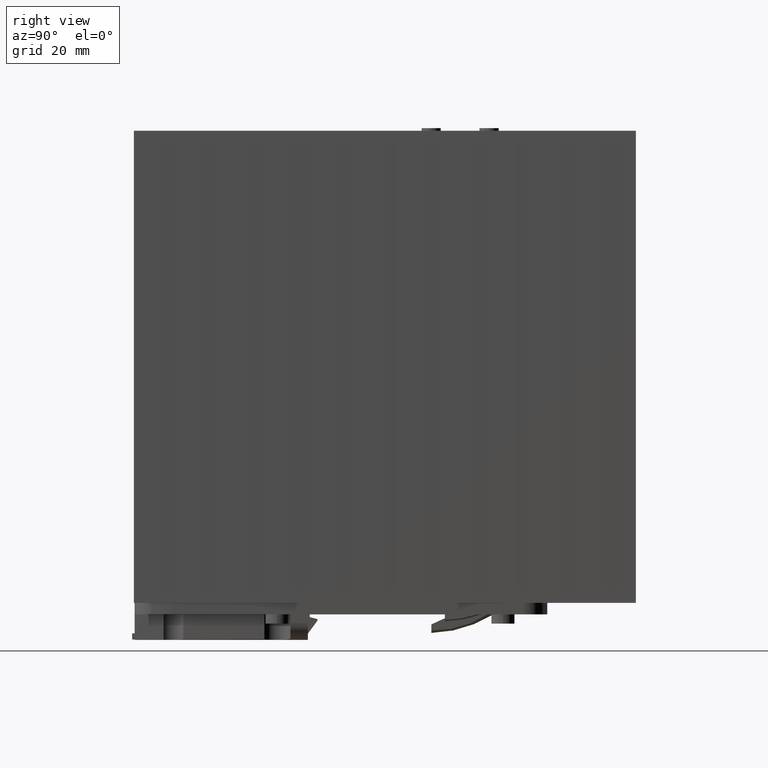
[diagram: clean part render]
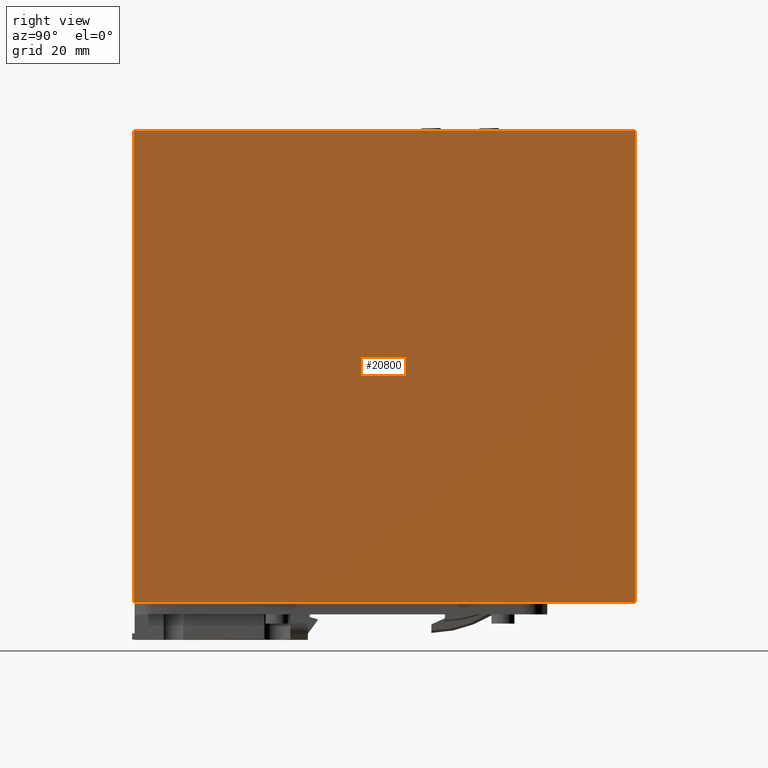
[diagram: same view with one face highlighted and labeled with its STEP entity id]
A machine part, right view. The second image highlights one B-rep face of the part: STEP entity #20800.
In plain terms, the highlighted planar face has unit normal (1, -0, -0).
Its self-contained STEP definition (entity closure, byte-faithful):
#20410=CARTESIAN_POINT('',(36.,129.2,12.0999999999997));
#20420=DIRECTION('',(1.,0.,-0.));
#20430=DIRECTION('',(0.,0.,1.));
#20440=AXIS2_PLACEMENT_3D('',#20410,#20420,#20430);
#20450=PLANE('',#20440);
#20460=CARTESIAN_POINT('',(36.,130.,131.2));
#20470=DIRECTION('',(0.,0.,-1.));
#20480=VECTOR('',#20470,1.);
#20490=LINE('',#20460,#20480);
#20500=CARTESIAN_POINT('',(36.,130.,131.85));
#20510=VERTEX_POINT('',#20500);
#20520=CARTESIAN_POINT('',(36.,130.,9.59999999999972));
#20530=VERTEX_POINT('',#20520);
#20540=EDGE_CURVE('',#20510,#20530,#20490,.T.);
#20550=ORIENTED_EDGE('',*,*,#20540,.F.);
#20560=CARTESIAN_POINT('',(36.,65.,9.59999999999972));
#20570=DIRECTION('',(0.,1.,0.));
#20580=VECTOR('',#20570,1.);
#20590=LINE('',#20560,#20580);
#20600=CARTESIAN_POINT('',(36.,0.,9.59999999999972));
#20610=VERTEX_POINT('',#20600);
#20620=EDGE_CURVE('',#20610,#20530,#20590,.T.);
#20630=ORIENTED_EDGE('',*,*,#20620,.T.);
#20640=CARTESIAN_POINT('',(36.,0.,131.2));
#20650=DIRECTION('',(0.,0.,1.));
#20660=VECTOR('',#20650,1.);
#20670=LINE('',#20640,#20660);
#20680=CARTESIAN_POINT('',(36.,0.,131.85));
#20690=VERTEX_POINT('',#20680);
#20700=EDGE_CURVE('',#20610,#20690,#20670,.T.);
#20710=ORIENTED_EDGE('',*,*,#20700,.F.);
#20720=CARTESIAN_POINT('',(36.,65.,131.85));
#20730=DIRECTION('',(0.,-1.,0.));
#20740=VECTOR('',#20730,1.);
#20750=LINE('',#20720,#20740);
#20760=EDGE_CURVE('',#20510,#20690,#20750,.T.);
#20770=ORIENTED_EDGE('',*,*,#20760,.T.);
#20780=EDGE_LOOP('',(#20770,#20710,#20630,#20550));
#20790=FACE_OUTER_BOUND('',#20780,.T.);
#20800=ADVANCED_FACE('',(#20790),#20450,.T.);